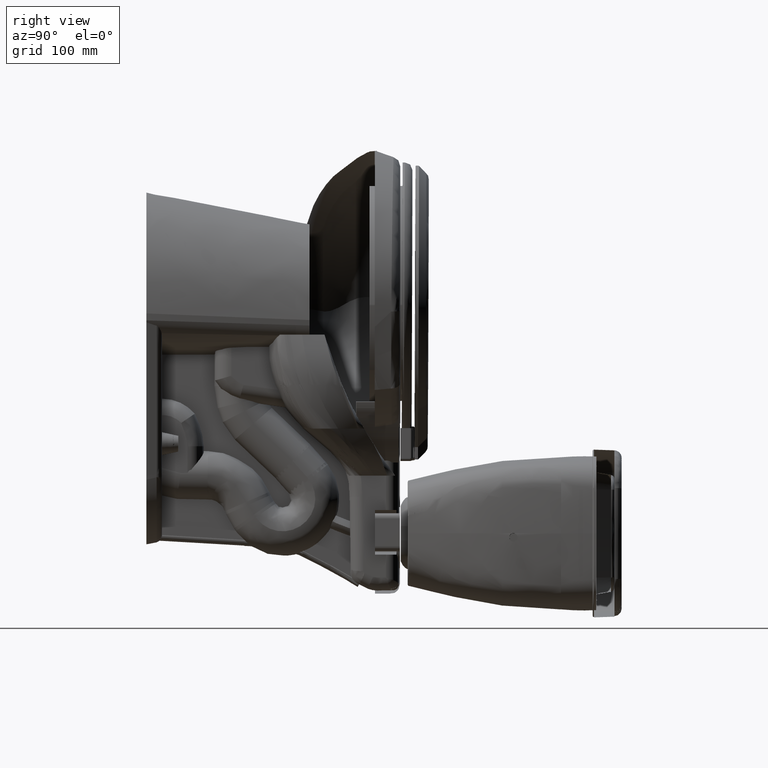
[diagram: clean part render]
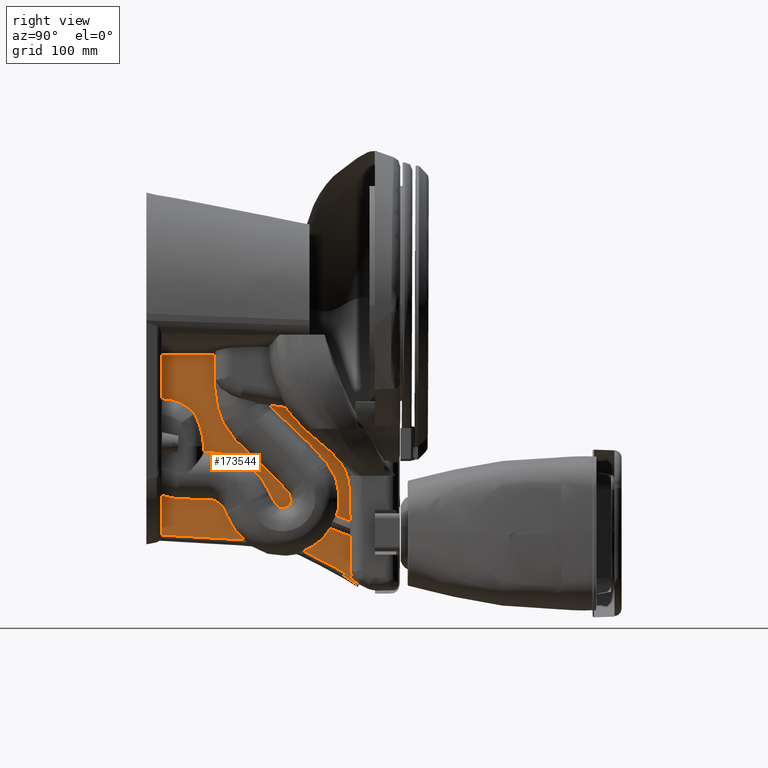
[diagram: same view with one face highlighted and labeled with its STEP entity id]
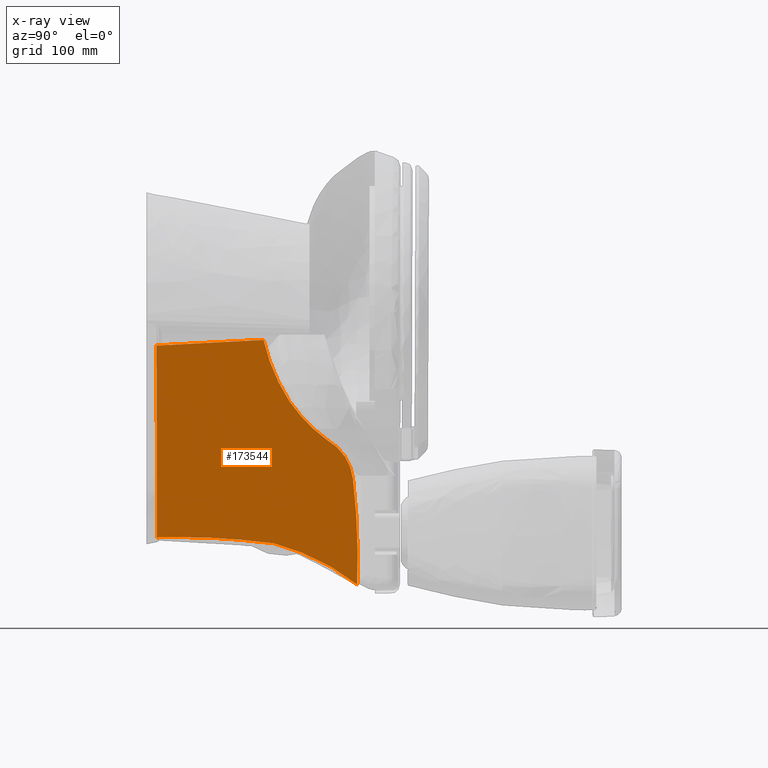
[diagram: x-ray of the same camera — body ghosted, the highlighted face saturated]
A machine part, right view. The second image highlights one B-rep face of the part: STEP entity #173544.
The next image is the same camera in x-ray: the body ghosted, the highlighted face saturated — about 0% of this face is hidden behind the body in this view.
In plain terms, the highlighted planar face has unit normal (-1, -0, 0).
Its self-contained STEP definition (entity closure, byte-faithful):
#2608 = ORIENTED_EDGE ( 'NONE', *, *, #190322, .T. ) ;
#3112 = EDGE_CURVE ( 'NONE', #23628, #129688, #80448, .T. ) ;
#5957 = CARTESIAN_POINT ( 'NONE',  ( 0.1968503937007889900, 22.68709668051299400, 4.238867436741732500 ) ) ;
#6897 = DIRECTION ( 'NONE',  ( -1.112042861636444900E-016, -1.000000000000000000, 0.0000000000000000000 ) ) ;
#12141 = ORIENTED_EDGE ( 'NONE', *, *, #64268, .T. ) ;
#13096 = AXIS2_PLACEMENT_3D ( 'NONE', #42880, #58468, #120758 ) ;
#16084 = DIRECTION ( 'NONE',  ( -0.0000000000000000000, 0.05256841691034480600, -0.9986173248765214400 ) ) ;
#18921 = CARTESIAN_POINT ( 'NONE',  ( 0.1968503937007875200, 5.467515007226762900, 12.46302085359505600 ) ) ;
#20190 = DIRECTION ( 'NONE',  ( -1.000000000000000000, 1.110223024625000000E-016, -1.232595164408000100E-032 ) ) ;
#21449 = CARTESIAN_POINT ( 'NONE',  ( 0.1968503937007874100, -2.553241456692913600, 0.6136679133858269400 ) ) ;
#23628 = VERTEX_POINT ( 'NONE', #101612 ) ;
#26043 = CARTESIAN_POINT ( 'NONE',  ( 0.1968503937007875200, 9.381721835188585600, 7.680405798317591100 ) ) ;
#26210 = CARTESIAN_POINT ( 'NONE',  ( 0.1968503937007923300, 53.22394948358267900, 1.921381736185157500 ) ) ;
#27551 = ORIENTED_EDGE ( 'NONE', *, *, #33903, .T. ) ;
#29228 = ORIENTED_EDGE ( 'NONE', *, *, #122080, .F. ) ;
#29692 = AXIS2_PLACEMENT_3D ( 'NONE', #119325, #196474, #135507 ) ;
#30838 = CIRCLE ( 'NONE', #186196, 11.46182230723543300 ) ;
#33903 = EDGE_CURVE ( 'NONE', #42996, #23628, #186099, .T. ) ;
#35603 = VERTEX_POINT ( 'NONE', #85924 ) ;
#36055 = DIRECTION ( 'NONE',  ( -1.000000000000000000, 1.110223024625000000E-016, -1.232595164408000100E-032 ) ) ;
#42880 = CARTESIAN_POINT ( 'NONE',  ( 0.1968503937007876100, 5.830591196337402400, 9.422322820304724900 ) ) ;
#42996 = VERTEX_POINT ( 'NONE', #109505 ) ;
#43429 = EDGE_CURVE ( 'NONE', #131782, #42996, #30838, .T. ) ;
#44708 = CIRCLE ( 'NONE', #143002, 44.21885664874015700 ) ;
#46571 = CARTESIAN_POINT ( 'NONE',  ( 0.1968503937007874100, -2.893088268209055500, 7.069576874129921000 ) ) ;
#49568 = EDGE_CURVE ( 'NONE', #105664, #35603, #69597, .T. ) ;
#50507 = VECTOR ( 'NONE', #16084, 39.37007874015748900 ) ;
#58468 = DIRECTION ( 'NONE',  ( -1.000000000000000000, 1.110223024625000000E-016, -1.232595164408000100E-032 ) ) ;
#62332 = CIRCLE ( 'NONE', #13096, 3.062297968637638100 ) ;
#63585 = VECTOR ( 'NONE', #145334, 39.37007874015748100 ) ;
#63917 = EDGE_LOOP ( 'NONE', ( #198090, #120835, #12141, #141218, #73268, #29228, #2608, #173273, #27551 ) ) ;
#64268 = EDGE_CURVE ( 'NONE', #114923, #105664, #44708, .T. ) ;
#65506 = CIRCLE ( 'NONE', #128518, 44.21885664874015700 ) ;
#69597 = CIRCLE ( 'NONE', #167305, 13.74325965950157500 ) ;
#73268 = ORIENTED_EDGE ( 'NONE', *, *, #86633, .F. ) ;
#78013 = AXIS2_PLACEMENT_3D ( 'NONE', #114848, #160200, #159526 ) ;
#78796 = VERTEX_POINT ( 'NONE', #130305 ) ;
#80448 = LINE ( 'NONE', #21449, #63585 ) ;
#81481 = DIRECTION ( 'NONE',  ( -1.110560127152693700E-016, -1.000000000000000000, 0.0000000000000000000 ) ) ;
#82514 = AXIS2_PLACEMENT_3D ( 'NONE', #174240, #36055, #81481 ) ;
#85924 = CARTESIAN_POINT ( 'NONE',  ( 0.1968503937007877500, 11.87249791581738400, 12.71953012471179200 ) ) ;
#86633 = EDGE_CURVE ( 'NONE', #179744, #35603, #164915, .T. ) ;
#87518 = CARTESIAN_POINT ( 'NONE',  ( 0.1968503937007865000, 0.8263724728064936200, 8.640509418954941600 ) ) ;
#90131 = PLANE ( 'NONE',  #29692 ) ;
#98976 = CARTESIAN_POINT ( 'NONE',  ( 0.1968503937007923300, 53.22394948358267900, 1.921381736185157500 ) ) ;
#101612 = CARTESIAN_POINT ( 'NONE',  ( 0.1968503937007874100, -2.553241456693351500, 0.6136679133858098400 ) ) ;
#105664 = VERTEX_POINT ( 'NONE', #26043 ) ;
#109505 = CARTESIAN_POINT ( 'NONE',  ( 0.1968503937007871600, -2.893088268209054200, 7.069576874129896100 ) ) ;
#114848 = CARTESIAN_POINT ( 'NONE',  ( 0.1968503937007865200, -4.726482633094488700, 16.65794936920905700 ) ) ;
#114882 = DIRECTION ( 'NONE',  ( -1.102337536913421500E-016, -1.000000000000000000, 0.0000000000000000000 ) ) ;
#114923 = VERTEX_POINT ( 'NONE', #188191 ) ;
#119325 = CARTESIAN_POINT ( 'NONE',  ( 0.1968503937007874100, -2.893088268209055500, 7.069576874129921000 ) ) ;
#120758 = DIRECTION ( 'NONE',  ( -1.115113560813782300E-016, -1.000000000000000000, 0.0000000000000000000 ) ) ;
#120835 = ORIENTED_EDGE ( 'NONE', *, *, #180908, .T. ) ;
#122080 = EDGE_CURVE ( 'NONE', #78796, #179744, #62332, .T. ) ;
#128518 = AXIS2_PLACEMENT_3D ( 'NONE', #98976, #160624, #6897 ) ;
#129688 = VERTEX_POINT ( 'NONE', #194064 ) ;
#130305 = CARTESIAN_POINT ( 'NONE',  ( 0.1968503937007873000, 3.159417122040741900, 10.91982003683889200 ) ) ;
#131782 = VERTEX_POINT ( 'NONE', #87518 ) ;
#135241 = DIRECTION ( 'NONE',  ( -1.112042861636444900E-016, -1.000000000000000000, 0.0000000000000000000 ) ) ;
#135507 = DIRECTION ( 'NONE',  ( -1.110223024625000000E-016, 0.0000000000000000000, 1.000000000000000000 ) ) ;
#141218 = ORIENTED_EDGE ( 'NONE', *, *, #49568, .T. ) ;
#143002 = AXIS2_PLACEMENT_3D ( 'NONE', #26210, #165044, #135241 ) ;
#144723 = DIRECTION ( 'NONE',  ( -1.118122290132061800E-016, -1.000000000000000000, 0.0000000000000000000 ) ) ;
#145334 = DIRECTION ( 'NONE',  ( -0.0000000000000000000, 0.9999974092001985300, 0.002276311246432451700 ) ) ;
#145471 = FACE_OUTER_BOUND ( 'NONE', #63917, .T. ) ;
#159526 = DIRECTION ( 'NONE',  ( -1.120457380511476300E-016, -1.000000000000000000, 0.0000000000000000000 ) ) ;
#159527 = CIRCLE ( 'NONE', #78013, 9.752617247849999100 ) ;
#160200 = DIRECTION ( 'NONE',  ( -1.000000000000000000, 1.110223024625000000E-016, -1.232595164408000100E-032 ) ) ;
#160624 = DIRECTION ( 'NONE',  ( -1.000000000000000000, 1.110223024625000000E-016, -1.232595164408000100E-032 ) ) ;
#161578 = CARTESIAN_POINT ( 'NONE',  ( 0.1968503937007867200, -5.423157304224409900, 18.24866991764803000 ) ) ;
#164915 = CIRCLE ( 'NONE', #82514, 41.51052587425196800 ) ;
#165044 = DIRECTION ( 'NONE',  ( -1.000000000000000000, 1.110223024625000000E-016, -1.232595164408000100E-032 ) ) ;
#167305 = AXIS2_PLACEMENT_3D ( 'NONE', #5957, #20190, #144723 ) ;
#173273 = ORIENTED_EDGE ( 'NONE', *, *, #43429, .T. ) ;
#173544 = ADVANCED_FACE ( 'NONE', ( #145471 ), #90131, .F. ) ;
#174240 = CARTESIAN_POINT ( 'NONE',  ( 0.1968503937007879700, 10.32614602362086700, -28.76218336668110400 ) ) ;
#176462 = DIRECTION ( 'NONE',  ( -1.000000000000000000, 1.110223024625000000E-016, -1.232595164408000100E-032 ) ) ;
#179744 = VERTEX_POINT ( 'NONE', #18921 ) ;
#180908 = EDGE_CURVE ( 'NONE', #129688, #114923, #65506, .T. ) ;
#186099 = LINE ( 'NONE', #46571, #50507 ) ;
#186196 = AXIS2_PLACEMENT_3D ( 'NONE', #161578, #176462, #114882 ) ;
#188191 = CARTESIAN_POINT ( 'NONE',  ( 0.1968503937007874100, 9.005092834842521700, 1.921381736185157500 ) ) ;
#190322 = EDGE_CURVE ( 'NONE', #78796, #131782, #159527, .T. ) ;
#194064 = CARTESIAN_POINT ( 'NONE',  ( 0.1968503937007898800, 9.023662188083481100, 0.6400206176258774700 ) ) ;
#196474 = DIRECTION ( 'NONE',  ( -1.000000000000000000, 1.368455531567204200E-048, -1.110223024625000000E-016 ) ) ;
#198090 = ORIENTED_EDGE ( 'NONE', *, *, #3112, .T. ) ;